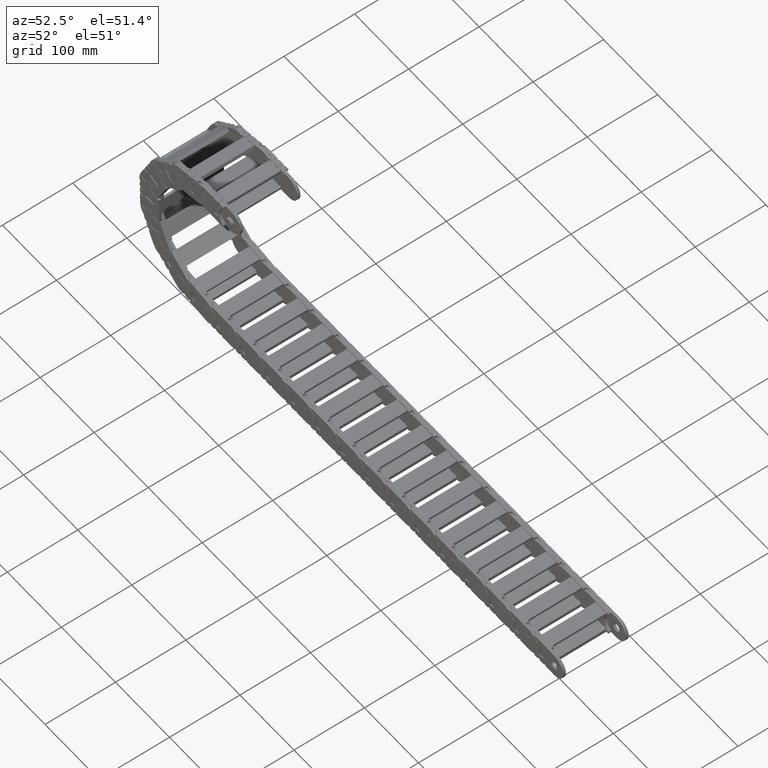
[diagram: clean part render]
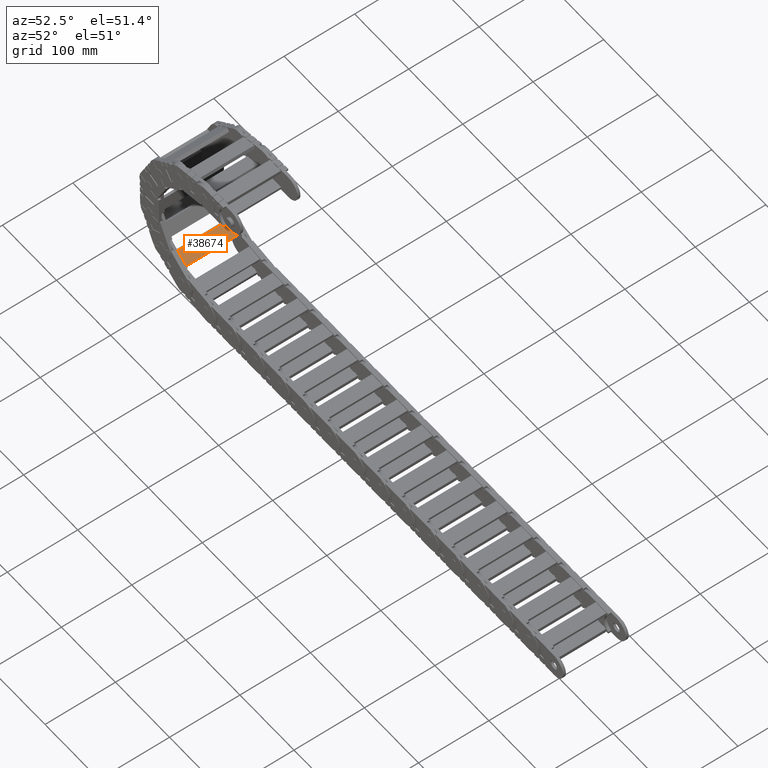
[diagram: same view with one face highlighted and labeled with its STEP entity id]
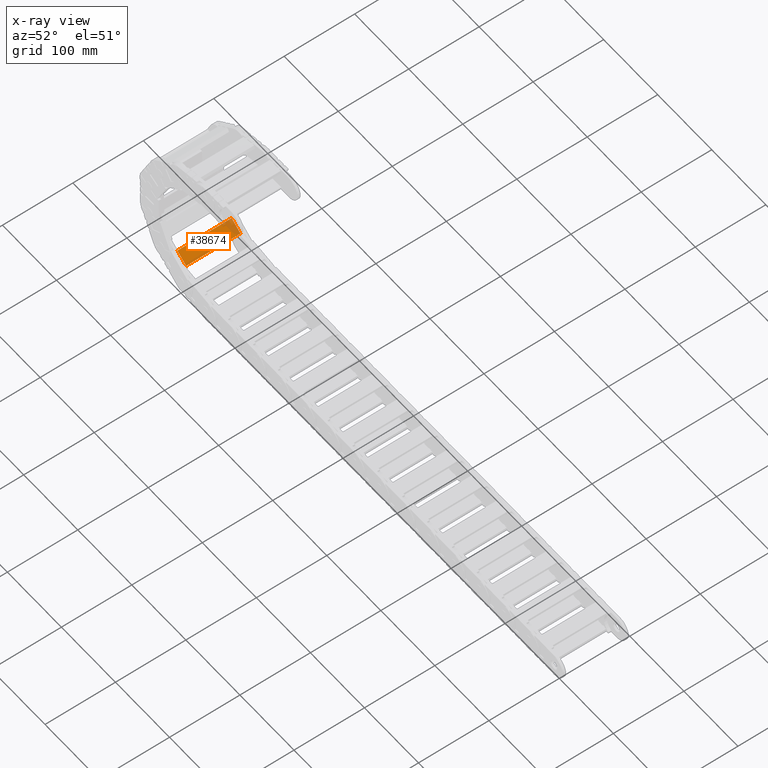
[diagram: x-ray of the same camera — body ghosted, the highlighted face saturated]
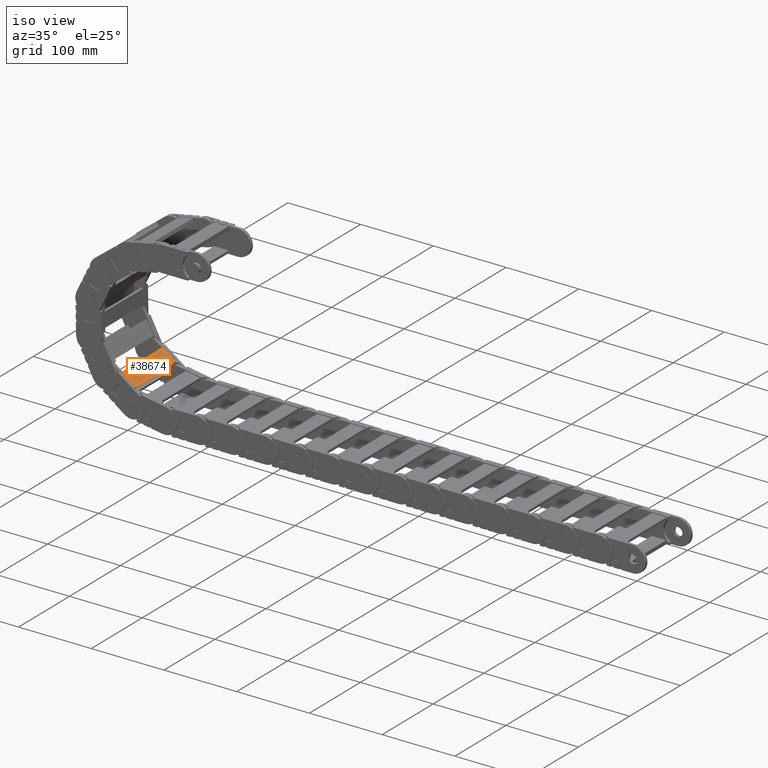
[diagram: same view with one face highlighted and labeled with its STEP entity id]
A machine part, auxiliary view. The second image highlights one B-rep face of the part: STEP entity #38674.
The next image is the same camera in x-ray: the body ghosted, the highlighted face saturated — about 12% of this face is hidden behind the body in this view.
A second angle (iso view) of the same face is appended — the face is thin or edge-on in the first view.
In plain terms, the highlighted planar face has unit normal (-0.5831, 0, -0.8124).
Its self-contained STEP definition (entity closure, byte-faithful):
#595 = CARTESIAN_POINT ( 'NONE',  ( -27.18099978993306820, 1.515826771653543403, 1.115019829507873927 ) ) ;
#3849 = EDGE_CURVE ( 'NONE', #17566, #48748, #64549, .T. ) ;
#6250 = VECTOR ( 'NONE', #25582, 39.37007874015748143 ) ;
#7279 = CARTESIAN_POINT ( 'NONE',  ( -27.82070858850275741, 1.515826771653543403, 1.574121009026094420 ) ) ;
#8042 = EDGE_CURVE ( 'NONE', #9993, #56485, #63248, .T. ) ;
#8634 = CARTESIAN_POINT ( 'NONE',  ( -27.82070858850275741, 3.031496062992125928, 1.574121009026094420 ) ) ;
#9993 = VERTEX_POINT ( 'NONE', #76339 ) ;
#15688 = VECTOR ( 'NONE', #76880, 39.37007874015748143 ) ;
#17566 = VERTEX_POINT ( 'NONE', #56055 ) ;
#25582 = DIRECTION ( 'NONE',  ( 0.000000000000000000, 1.000000000000000000, 0.000000000000000000 ) ) ;
#29459 = AXIS2_PLACEMENT_3D ( 'NONE', #63513, #70136, #51841 ) ;
#30200 = EDGE_LOOP ( 'NONE', ( #48625, #66611, #50437, #64051 ) ) ;
#38376 = CARTESIAN_POINT ( 'NONE',  ( -27.82070858850275741, 0.0001181102362204767788, 1.574121009026094420 ) ) ;
#38674 = ADVANCED_FACE ( 'NONE', ( #46398 ), #39790, .F. ) ;
#39790 = PLANE ( 'NONE',  #29459 ) ;
#44255 = LINE ( 'NONE', #7279, #6250 ) ;
#46398 = FACE_OUTER_BOUND ( 'NONE', #30200, .T. ) ;
#48625 = ORIENTED_EDGE ( 'NONE', *, *, #3849, .T. ) ;
#48748 = VERTEX_POINT ( 'NONE', #8634 ) ;
#50437 = ORIENTED_EDGE ( 'NONE', *, *, #8042, .F. ) ;
#51841 = DIRECTION ( 'NONE',  ( -0.8124301741834897284, 0.000000000000000000, 0.5830584979881389129 ) ) ;
#54697 = DIRECTION ( 'NONE',  ( -0.8124301741834897284, 0.000000000000000000, 0.5830584979881389129 ) ) ;
#56055 = CARTESIAN_POINT ( 'NONE',  ( -27.18099978993306820, 3.031496062992125928, 1.115019829507873927 ) ) ;
#56485 = VERTEX_POINT ( 'NONE', #38376 ) ;
#57061 = VECTOR ( 'NONE', #54697, 39.37007874015748143 ) ;
#60480 = LINE ( 'NONE', #595, #15688 ) ;
#60707 = EDGE_CURVE ( 'NONE', #56485, #48748, #44255, .T. ) ;
#62501 = DIRECTION ( 'NONE',  ( -0.8124301741834897284, 0.000000000000000000, 0.5830584979881389129 ) ) ;
#63248 = LINE ( 'NONE', #69091, #74856 ) ;
#63513 = CARTESIAN_POINT ( 'NONE',  ( -27.50085418921791458, 1.515826771653543403, 1.344570419266984285 ) ) ;
#64051 = ORIENTED_EDGE ( 'NONE', *, *, #68271, .T. ) ;
#64549 = LINE ( 'NONE', #70785, #57061 ) ;
#66611 = ORIENTED_EDGE ( 'NONE', *, *, #60707, .F. ) ;
#68271 = EDGE_CURVE ( 'NONE', #9993, #17566, #60480, .T. ) ;
#69091 = CARTESIAN_POINT ( 'NONE',  ( -27.50085418921791458, 0.0001181102362204767788, 1.344570419266984285 ) ) ;
#70136 = DIRECTION ( 'NONE',  ( -0.5830584979881389129, 0.000000000000000000, -0.8124301741834897284 ) ) ;
#70785 = CARTESIAN_POINT ( 'NONE',  ( -27.50085418921783642, 3.031496062992125928, 1.344570419266928996 ) ) ;
#74856 = VECTOR ( 'NONE', #62501, 39.37007874015748143 ) ;
#76339 = CARTESIAN_POINT ( 'NONE',  ( -27.18099978993306820, 0.0001181102362204767788, 1.115019829507873927 ) ) ;
#76880 = DIRECTION ( 'NONE',  ( 0.000000000000000000, 1.000000000000000000, 0.000000000000000000 ) ) ;